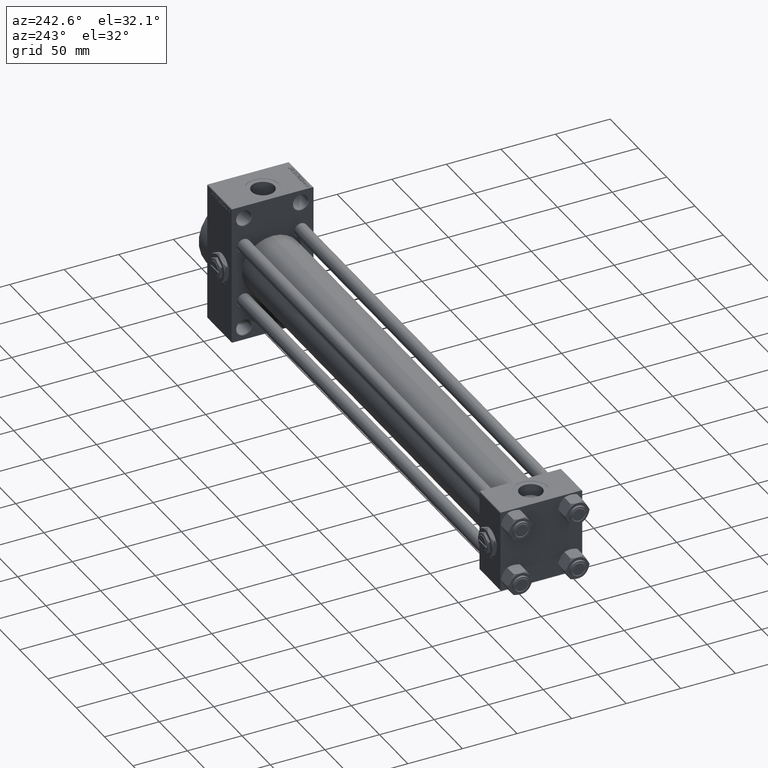
[diagram: clean part render]
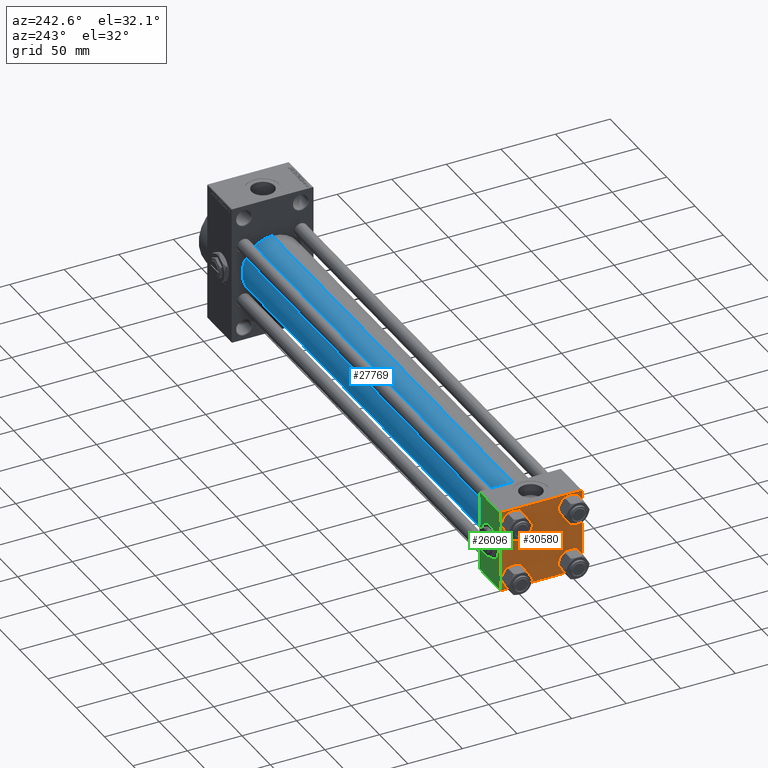
[diagram: same view with three faces highlighted in distinct colors, each labeled with its STEP entity id]
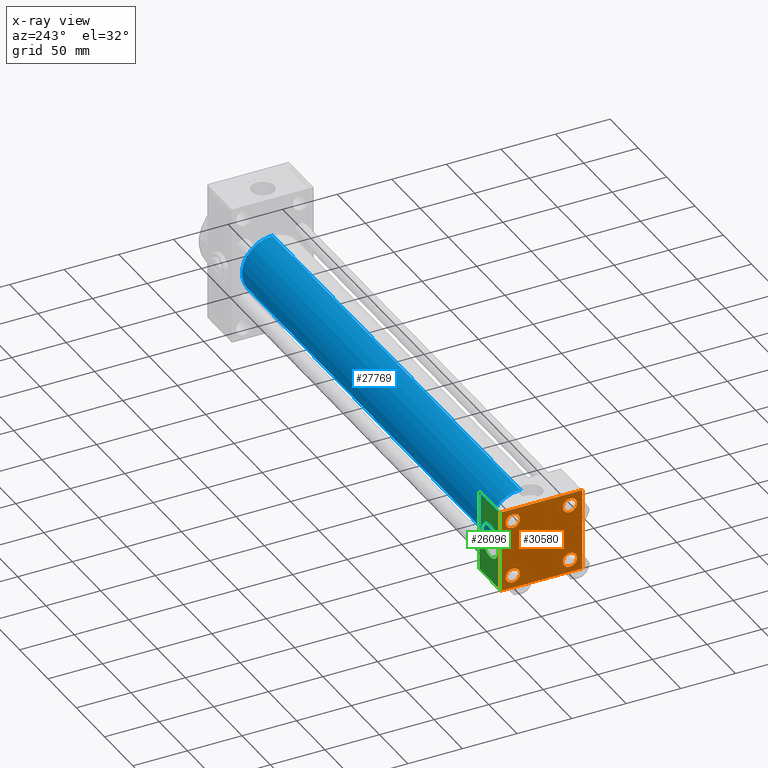
[diagram: x-ray of the same camera — body ghosted, the three highlighted faces saturated]
A machine part, auxiliary view with three faces highlighted in distinct colors.
The next image is the same camera in x-ray (body ghosted, the three faces saturated) — at least one of them is partly hidden behind the body in this view.
Their STEP definitions:

[orange] entity #30580 — the highlighted planar face has unit normal (-1, 0, 0).
#150 = CARTESIAN_POINT ( 'NONE',  ( 0.000000000000000000, 26.14999999999999858, 26.15000000000000213 ) ) ;
#344 = CARTESIAN_POINT ( 'NONE',  ( 0.000000000000000000, 26.14999999999999858, 26.15000000000000213 ) ) ;
#502 = VECTOR ( 'NONE', #7561, 1000.000000000000000 ) ;
#1248 = LINE ( 'NONE', #30566, #42402 ) ;
#1568 = DIRECTION ( 'NONE',  ( 1.000000000000000000, -0.000000000000000000, 0.000000000000000000 ) ) ;
#2137 = AXIS2_PLACEMENT_3D ( 'NONE', #29316, #14272, #11243 ) ;
#4448 = AXIS2_PLACEMENT_3D ( 'NONE', #8959, #43768, #24765 ) ;
#5166 = EDGE_CURVE ( 'NONE', #17148, #48189, #31656, .T. ) ;
#5606 = CARTESIAN_POINT ( 'NONE',  ( 0.000000000000000000, 26.14999999999999858, 32.65000000000002700 ) ) ;
#6447 = LINE ( 'NONE', #18213, #13741 ) ;
#6728 = FACE_BOUND ( 'NONE', #34244, .T. ) ;
#7218 = DIRECTION ( 'NONE',  ( -1.000000000000000000, 0.000000000000000000, -0.000000000000000000 ) ) ;
#7422 = EDGE_CURVE ( 'NONE', #48189, #17148, #33332, .T. ) ;
#7451 = VERTEX_POINT ( 'NONE', #10994 ) ;
#7561 = DIRECTION ( 'NONE',  ( 0.000000000000000000, -1.000000000000000000, -9.251858538542971581E-17 ) ) ;
#7709 = PLANE ( 'NONE',  #33599 ) ;
#7734 = DIRECTION ( 'NONE',  ( 0.000000000000000000, 0.000000000000000000, 1.000000000000000000 ) ) ;
#8185 = EDGE_CURVE ( 'NONE', #30026, #38930, #47740, .T. ) ;
#8694 = ORIENTED_EDGE ( 'NONE', *, *, #22542, .T. ) ;
#8959 = CARTESIAN_POINT ( 'NONE',  ( 0.000000000000000000, -26.14999999999999147, -26.15000000000000924 ) ) ;
#9024 = CARTESIAN_POINT ( 'NONE',  ( 0.000000000000000000, 26.14999999999999858, -32.65000000000001990 ) ) ;
#9433 = VERTEX_POINT ( 'NONE', #24601 ) ;
#10401 = LINE ( 'NONE', #24964, #20207 ) ;
#10431 = CIRCLE ( 'NONE', #44044, 6.500000000000015987 ) ;
#10994 = CARTESIAN_POINT ( 'NONE',  ( 0.000000000000000000, -37.00000000000000711, 37.49999999999999289 ) ) ;
#11243 = DIRECTION ( 'NONE',  ( 0.000000000000000000, 0.000000000000000000, 1.000000000000000000 ) ) ;
#11472 = FACE_OUTER_BOUND ( 'NONE', #41626, .T. ) ;
#11652 = CARTESIAN_POINT ( 'NONE',  ( 0.000000000000000000, -37.50000000000000000, -37.00000000000003553 ) ) ;
#11781 = VERTEX_POINT ( 'NONE', #11652 ) ;
#11860 = DIRECTION ( 'NONE',  ( 1.000000000000000000, -0.000000000000000000, 0.000000000000000000 ) ) ;
#12241 = CARTESIAN_POINT ( 'NONE',  ( 0.000000000000000000, 26.14999999999999858, -26.15000000000000213 ) ) ;
#12319 = LINE ( 'NONE', #27127, #26183 ) ;
#13265 = ORIENTED_EDGE ( 'NONE', *, *, #18556, .F. ) ;
#13466 = CIRCLE ( 'NONE', #25448, 6.500000000000023093 ) ;
#13741 = VECTOR ( 'NONE', #29251, 1000.000000000000000 ) ;
#14065 = EDGE_LOOP ( 'NONE', ( #24529, #37619 ) ) ;
#14272 = DIRECTION ( 'NONE',  ( 1.000000000000000000, -0.000000000000000000, 0.000000000000000000 ) ) ;
#14423 = CARTESIAN_POINT ( 'NONE',  ( 0.000000000000000000, 37.49999999999999289, 37.50000000000000000 ) ) ;
#14492 = FACE_BOUND ( 'NONE', #43330, .T. ) ;
#14749 = CARTESIAN_POINT ( 'NONE',  ( 0.000000000000000000, 0.000000000000000000, 0.000000000000000000 ) ) ;
#14866 = EDGE_CURVE ( 'NONE', #15024, #38698, #18287, .T. ) ;
#15024 = VERTEX_POINT ( 'NONE', #27642 ) ;
#15157 = ORIENTED_EDGE ( 'NONE', *, *, #38969, .T. ) ;
#15630 = DIRECTION ( 'NONE',  ( 0.000000000000000000, 0.000000000000000000, 1.000000000000000000 ) ) ;
#16030 = DIRECTION ( 'NONE',  ( 0.000000000000000000, 9.251858538542971581E-17, -1.000000000000000000 ) ) ;
#16268 = VECTOR ( 'NONE', #17522, 1000.000000000000114 ) ;
#16846 = DIRECTION ( 'NONE',  ( 0.000000000000000000, 0.000000000000000000, 1.000000000000000000 ) ) ;
#17148 = VERTEX_POINT ( 'NONE', #46003 ) ;
#17522 = DIRECTION ( 'NONE',  ( -0.000000000000000000, -0.7071067811865474617, -0.7071067811865474617 ) ) ;
#17593 = ORIENTED_EDGE ( 'NONE', *, *, #14866, .T. ) ;
#18213 = CARTESIAN_POINT ( 'NONE',  ( 0.000000000000000000, -37.24999999999975842, -37.25000000000027001 ) ) ;
#18282 = CIRCLE ( 'NONE', #23080, 6.500000000000015987 ) ;
#18287 = CIRCLE ( 'NONE', #24666, 6.500000000000023093 ) ;
#18556 = EDGE_CURVE ( 'NONE', #9433, #7451, #37616, .T. ) ;
#18794 = CARTESIAN_POINT ( 'NONE',  ( 0.000000000000000000, 37.49999999999999289, 37.00000000000000000 ) ) ;
#19262 = DIRECTION ( 'NONE',  ( 0.000000000000000000, 0.000000000000000000, 1.000000000000000000 ) ) ;
#19916 = EDGE_CURVE ( 'NONE', #46386, #35856, #38796, .T. ) ;
#20135 = DIRECTION ( 'NONE',  ( 0.000000000000000000, 0.000000000000000000, 1.000000000000000000 ) ) ;
#20207 = VECTOR ( 'NONE', #40945, 1000.000000000000114 ) ;
#20632 = CARTESIAN_POINT ( 'NONE',  ( 0.000000000000000000, -26.14999999999999147, 26.15000000000000924 ) ) ;
#20876 = EDGE_CURVE ( 'NONE', #25463, #7451, #12319, .T. ) ;
#21333 = VECTOR ( 'NONE', #24292, 1000.000000000000000 ) ;
#21579 = CIRCLE ( 'NONE', #32760, 6.500000000000023093 ) ;
#22542 = EDGE_CURVE ( 'NONE', #38698, #15024, #13466, .T. ) ;
#23080 = AXIS2_PLACEMENT_3D ( 'NONE', #12241, #41800, #7734 ) ;
#23206 = DIRECTION ( 'NONE',  ( 1.000000000000000000, -0.000000000000000000, 0.000000000000000000 ) ) ;
#23462 = ORIENTED_EDGE ( 'NONE', *, *, #7422, .T. ) ;
#23913 = EDGE_CURVE ( 'NONE', #48347, #26261, #18282, .T. ) ;
#24292 = DIRECTION ( 'NONE',  ( 0.000000000000000000, -1.000000000000000000, -9.251858538542972814E-17 ) ) ;
#24529 = ORIENTED_EDGE ( 'NONE', *, *, #31540, .T. ) ;
#24601 = CARTESIAN_POINT ( 'NONE',  ( 0.000000000000000000, 36.99999999999999289, 37.50000000000000000 ) ) ;
#24666 = AXIS2_PLACEMENT_3D ( 'NONE', #150, #23206, #38457 ) ;
#24765 = DIRECTION ( 'NONE',  ( 0.000000000000000000, 0.000000000000000000, 1.000000000000000000 ) ) ;
#24964 = CARTESIAN_POINT ( 'NONE',  ( 0.000000000000000000, 37.24999999999999289, 37.24999999999999289 ) ) ;
#24987 = ORIENTED_EDGE ( 'NONE', *, *, #34382, .T. ) ;
#25448 = AXIS2_PLACEMENT_3D ( 'NONE', #344, #11860, #15630 ) ;
#25463 = VERTEX_POINT ( 'NONE', #30636 ) ;
#25719 = EDGE_CURVE ( 'NONE', #38930, #30026, #21579, .T. ) ;
#26028 = FACE_BOUND ( 'NONE', #33808, .T. ) ;
#26183 = VECTOR ( 'NONE', #46866, 1000.000000000000114 ) ;
#26261 = VERTEX_POINT ( 'NONE', #26769 ) ;
#26769 = CARTESIAN_POINT ( 'NONE',  ( 0.000000000000000000, 26.14999999999999858, -19.64999999999998792 ) ) ;
#27127 = CARTESIAN_POINT ( 'NONE',  ( -0.000000000000000000, -37.25000000000000000, 37.25000000000000000 ) ) ;
#27642 = CARTESIAN_POINT ( 'NONE',  ( 0.000000000000000000, 26.14999999999999858, 19.64999999999998437 ) ) ;
#28067 = EDGE_CURVE ( 'NONE', #25463, #11781, #1248, .T. ) ;
#28546 = CARTESIAN_POINT ( 'NONE',  ( 0.000000000000000000, 37.24999999999998579, -37.24999999999998579 ) ) ;
#28673 = VERTEX_POINT ( 'NONE', #40477 ) ;
#28948 = CARTESIAN_POINT ( 'NONE',  ( 0.000000000000000000, 36.99999999999997868, -37.50000000000000000 ) ) ;
#29004 = ORIENTED_EDGE ( 'NONE', *, *, #5166, .T. ) ;
#29251 = DIRECTION ( 'NONE',  ( 0.000000000000000000, -0.7071067811865524577, 0.7071067811865426878 ) ) ;
#29316 = CARTESIAN_POINT ( 'NONE',  ( 0.000000000000000000, -26.14999999999999147, -26.15000000000000924 ) ) ;
#30026 = VERTEX_POINT ( 'NONE', #38517 ) ;
#30040 = DIRECTION ( 'NONE',  ( 1.000000000000000000, -0.000000000000000000, 0.000000000000000000 ) ) ;
#30566 = CARTESIAN_POINT ( 'NONE',  ( 0.000000000000000000, -37.50000000000000711, 37.49999999999999289 ) ) ;
#30580 = ADVANCED_FACE ( 'NONE', ( #6728, #14492, #45284, #26028, #11472 ), #7709, .T. ) ;
#30613 = CARTESIAN_POINT ( 'NONE',  ( 0.000000000000000000, 37.49999999999999289, 37.50000000000000000 ) ) ;
#30636 = CARTESIAN_POINT ( 'NONE',  ( 0.000000000000000000, -37.50000000000000711, 36.99999999999999289 ) ) ;
#31540 = EDGE_CURVE ( 'NONE', #26261, #48347, #10431, .T. ) ;
#31628 = ORIENTED_EDGE ( 'NONE', *, *, #36051, .T. ) ;
#31656 = CIRCLE ( 'NONE', #4448, 6.500000000000015987 ) ;
#32044 = CARTESIAN_POINT ( 'NONE',  ( 0.000000000000000000, -26.14999999999999147, 32.65000000000003411 ) ) ;
#32142 = DIRECTION ( 'NONE',  ( 1.000000000000000000, -0.000000000000000000, 0.000000000000000000 ) ) ;
#32760 = AXIS2_PLACEMENT_3D ( 'NONE', #35865, #1568, #16846 ) ;
#32771 = ORIENTED_EDGE ( 'NONE', *, *, #8185, .T. ) ;
#33332 = CIRCLE ( 'NONE', #2137, 6.500000000000015987 ) ;
#33529 = CARTESIAN_POINT ( 'NONE',  ( 0.000000000000000000, 26.14999999999999858, -26.15000000000000213 ) ) ;
#33599 = AXIS2_PLACEMENT_3D ( 'NONE', #14749, #7218, #44795 ) ;
#33808 = EDGE_LOOP ( 'NONE', ( #8694, #17593 ) ) ;
#34244 = EDGE_LOOP ( 'NONE', ( #43713, #32771 ) ) ;
#34304 = ORIENTED_EDGE ( 'NONE', *, *, #28067, .F. ) ;
#34382 = EDGE_CURVE ( 'NONE', #35856, #11781, #6447, .T. ) ;
#34579 = ORIENTED_EDGE ( 'NONE', *, *, #39513, .T. ) ;
#35856 = VERTEX_POINT ( 'NONE', #46912 ) ;
#35865 = CARTESIAN_POINT ( 'NONE',  ( 0.000000000000000000, -26.14999999999999147, 26.15000000000000924 ) ) ;
#36051 = EDGE_CURVE ( 'NONE', #9433, #43290, #10401, .T. ) ;
#37458 = ORIENTED_EDGE ( 'NONE', *, *, #20876, .T. ) ;
#37616 = LINE ( 'NONE', #30613, #502 ) ;
#37619 = ORIENTED_EDGE ( 'NONE', *, *, #23913, .T. ) ;
#38457 = DIRECTION ( 'NONE',  ( 0.000000000000000000, 0.000000000000000000, 1.000000000000000000 ) ) ;
#38517 = CARTESIAN_POINT ( 'NONE',  ( 0.000000000000000000, -26.14999999999999147, 19.64999999999999147 ) ) ;
#38698 = VERTEX_POINT ( 'NONE', #5606 ) ;
#38796 = LINE ( 'NONE', #43294, #21333 ) ;
#38930 = VERTEX_POINT ( 'NONE', #32044 ) ;
#38969 = EDGE_CURVE ( 'NONE', #28673, #46386, #48055, .T. ) ;
#39513 = EDGE_CURVE ( 'NONE', #43290, #28673, #48716, .T. ) ;
#40477 = CARTESIAN_POINT ( 'NONE',  ( 0.000000000000000000, 37.49999999999999289, -36.99999999999998579 ) ) ;
#40945 = DIRECTION ( 'NONE',  ( 0.000000000000000000, 0.7071067811865474617, -0.7071067811865474617 ) ) ;
#41365 = CARTESIAN_POINT ( 'NONE',  ( 0.000000000000000000, -26.14999999999999147, -32.65000000000002700 ) ) ;
#41626 = EDGE_LOOP ( 'NONE', ( #34579, #15157, #45525, #24987, #34304, #37458, #13265, #31628 ) ) ;
#41800 = DIRECTION ( 'NONE',  ( 1.000000000000000000, -0.000000000000000000, 0.000000000000000000 ) ) ;
#42402 = VECTOR ( 'NONE', #16030, 1000.000000000000000 ) ;
#43290 = VERTEX_POINT ( 'NONE', #18794 ) ;
#43294 = CARTESIAN_POINT ( 'NONE',  ( 0.000000000000000000, 37.49999999999999289, -37.50000000000000000 ) ) ;
#43330 = EDGE_LOOP ( 'NONE', ( #29004, #23462 ) ) ;
#43713 = ORIENTED_EDGE ( 'NONE', *, *, #25719, .T. ) ;
#43768 = DIRECTION ( 'NONE',  ( 1.000000000000000000, -0.000000000000000000, 0.000000000000000000 ) ) ;
#44044 = AXIS2_PLACEMENT_3D ( 'NONE', #33529, #30040, #19262 ) ;
#44795 = DIRECTION ( 'NONE',  ( -0.000000000000000000, 0.000000000000000000, 1.000000000000000000 ) ) ;
#44961 = DIRECTION ( 'NONE',  ( 0.000000000000000000, 0.000000000000000000, -1.000000000000000000 ) ) ;
#45069 = VECTOR ( 'NONE', #44961, 1000.000000000000000 ) ;
#45284 = FACE_BOUND ( 'NONE', #14065, .T. ) ;
#45525 = ORIENTED_EDGE ( 'NONE', *, *, #19916, .T. ) ;
#46003 = CARTESIAN_POINT ( 'NONE',  ( 0.000000000000000000, -26.14999999999999147, -19.64999999999999503 ) ) ;
#46386 = VERTEX_POINT ( 'NONE', #28948 ) ;
#46866 = DIRECTION ( 'NONE',  ( -0.000000000000000000, 0.7071067811865474617, 0.7071067811865474617 ) ) ;
#46912 = CARTESIAN_POINT ( 'NONE',  ( 0.000000000000000000, -37.00000000000002132, -37.50000000000000711 ) ) ;
#46946 = AXIS2_PLACEMENT_3D ( 'NONE', #20632, #32142, #20135 ) ;
#47740 = CIRCLE ( 'NONE', #46946, 6.500000000000023093 ) ;
#48055 = LINE ( 'NONE', #28546, #16268 ) ;
#48189 = VERTEX_POINT ( 'NONE', #41365 ) ;
#48347 = VERTEX_POINT ( 'NONE', #9024 ) ;
#48716 = LINE ( 'NONE', #14423, #45069 ) ;

[blue] entity #27769 — the highlighted cylindrical surface (edge-blend (fillet) strip) has radius 28 mm, axis along (-1, -0, -0).
#787 = AXIS2_PLACEMENT_3D ( 'NONE', #22530, #38766, #35256 ) ;
#1906 = ORIENTED_EDGE ( 'NONE', *, *, #13721, .F. ) ;
#3848 = ORIENTED_EDGE ( 'NONE', *, *, #8379, .T. ) ;
#4449 = DIRECTION ( 'NONE',  ( -1.000000000000000000, -0.000000000000000000, -0.000000000000000000 ) ) ;
#6950 = VERTEX_POINT ( 'NONE', #14098 ) ;
#7017 = VECTOR ( 'NONE', #4449, 1000.000000000000000 ) ;
#8379 = EDGE_CURVE ( 'NONE', #11094, #34646, #48875, .T. ) ;
#10164 = VECTOR ( 'NONE', #37122, 1000.000000000000000 ) ;
#11094 = VERTEX_POINT ( 'NONE', #22326 ) ;
#12924 = CARTESIAN_POINT ( 'NONE',  ( 36.99999999999997868, 8.269258236473784371E-16, -28.00000000000000000 ) ) ;
#13721 = EDGE_CURVE ( 'NONE', #6950, #15347, #31251, .T. ) ;
#14098 = CARTESIAN_POINT ( 'NONE',  ( 475.0000000000000000, -2.602085213965210642E-15, 28.00000000000000000 ) ) ;
#15347 = VERTEX_POINT ( 'NONE', #29249 ) ;
#17879 = CIRCLE ( 'NONE', #32246, 28.00000000000000000 ) ;
#18415 = AXIS2_PLACEMENT_3D ( 'NONE', #32834, #40596, #32593 ) ;
#22326 = CARTESIAN_POINT ( 'NONE',  ( 475.0000000000000000, 8.269258236473784371E-16, -28.00000000000000000 ) ) ;
#22404 = CIRCLE ( 'NONE', #787, 28.00000000000000000 ) ;
#22530 = CARTESIAN_POINT ( 'NONE',  ( 475.0000000000000000, -2.602085213965210642E-15, 0.000000000000000000 ) ) ;
#23854 = FACE_OUTER_BOUND ( 'NONE', #38186, .T. ) ;
#26074 = DIRECTION ( 'NONE',  ( 0.000000000000000000, 0.000000000000000000, 1.000000000000000000 ) ) ;
#27064 = DIRECTION ( 'NONE',  ( 1.000000000000000000, -0.000000000000000000, 0.000000000000000000 ) ) ;
#27257 = EDGE_CURVE ( 'NONE', #11094, #6950, #22404, .T. ) ;
#27769 = ADVANCED_FACE ( 'NONE', ( #23854 ), #39109, .T. ) ;
#29249 = CARTESIAN_POINT ( 'NONE',  ( 36.99999999999997868, -2.602085213965210642E-15, 28.00000000000000000 ) ) ;
#30568 = CARTESIAN_POINT ( 'NONE',  ( 36.99999999999997868, -2.602085213965210642E-15, 0.000000000000000000 ) ) ;
#31251 = LINE ( 'NONE', #38270, #7017 ) ;
#31277 = ORIENTED_EDGE ( 'NONE', *, *, #38779, .T. ) ;
#32246 = AXIS2_PLACEMENT_3D ( 'NONE', #30568, #27064, #26074 ) ;
#32593 = DIRECTION ( 'NONE',  ( 0.000000000000000000, 0.000000000000000000, 1.000000000000000000 ) ) ;
#32834 = CARTESIAN_POINT ( 'NONE',  ( 475.0000000000000000, -2.602085213965210642E-15, 0.000000000000000000 ) ) ;
#34646 = VERTEX_POINT ( 'NONE', #12924 ) ;
#35256 = DIRECTION ( 'NONE',  ( 0.000000000000000000, 0.000000000000000000, -1.000000000000000000 ) ) ;
#37122 = DIRECTION ( 'NONE',  ( -1.000000000000000000, -0.000000000000000000, -0.000000000000000000 ) ) ;
#38186 = EDGE_LOOP ( 'NONE', ( #48275, #3848, #31277, #1906 ) ) ;
#38270 = CARTESIAN_POINT ( 'NONE',  ( 475.0000000000000000, -2.602085213965210642E-15, 28.00000000000000000 ) ) ;
#38766 = DIRECTION ( 'NONE',  ( 1.000000000000000000, 0.000000000000000000, 0.000000000000000000 ) ) ;
#38779 = EDGE_CURVE ( 'NONE', #34646, #15347, #17879, .T. ) ;
#39109 = CYLINDRICAL_SURFACE ( 'NONE', #18415, 28.00000000000000000 ) ;
#40596 = DIRECTION ( 'NONE',  ( -1.000000000000000000, -0.000000000000000000, -0.000000000000000000 ) ) ;
#47901 = CARTESIAN_POINT ( 'NONE',  ( 475.0000000000000000, 8.269258236473784371E-16, -28.00000000000000000 ) ) ;
#48275 = ORIENTED_EDGE ( 'NONE', *, *, #27257, .F. ) ;
#48875 = LINE ( 'NONE', #47901, #10164 ) ;

[green] entity #26096 — the highlighted planar face has unit normal (0, 1, 0).
#23 = EDGE_LOOP ( 'NONE', ( #44179, #9344 ) ) ;
#309 = VERTEX_POINT ( 'NONE', #46520 ) ;
#3088 = VERTEX_POINT ( 'NONE', #49161 ) ;
#4177 = AXIS2_PLACEMENT_3D ( 'NONE', #30910, #49418, #7120 ) ;
#4259 = LINE ( 'NONE', #46572, #27972 ) ;
#6379 = DIRECTION ( 'NONE',  ( 0.000000000000000000, 1.000000000000000000, 0.000000000000000000 ) ) ;
#7120 = DIRECTION ( 'NONE',  ( 0.000000000000000000, 0.000000000000000000, 1.000000000000000000 ) ) ;
#7357 = CARTESIAN_POINT ( 'NONE',  ( 18.50000000000000000, 37.49999999999999289, 0.000000000000000000 ) ) ;
#8970 = CIRCLE ( 'NONE', #4177, 15.00000000000000178 ) ;
#9075 = CARTESIAN_POINT ( 'NONE',  ( 37.00000000000000000, 37.49999999999999289, 37.00000000000000000 ) ) ;
#9344 = ORIENTED_EDGE ( 'NONE', *, *, #46449, .F. ) ;
#9601 = CARTESIAN_POINT ( 'NONE',  ( 37.00000000000000000, 37.49999999999999289, -36.99999999999998579 ) ) ;
#11226 = FACE_BOUND ( 'NONE', #23, .T. ) ;
#11968 = ORIENTED_EDGE ( 'NONE', *, *, #39513, .F. ) ;
#12739 = AXIS2_PLACEMENT_3D ( 'NONE', #45040, #40551, #21782 ) ;
#14423 = CARTESIAN_POINT ( 'NONE',  ( 0.000000000000000000, 37.49999999999999289, 37.50000000000000000 ) ) ;
#14779 = CARTESIAN_POINT ( 'NONE',  ( 37.00000000000000000, 37.49999999999999289, 37.00000000000000000 ) ) ;
#16602 = CIRCLE ( 'NONE', #29407, 15.00000000000000178 ) ;
#18506 = FACE_OUTER_BOUND ( 'NONE', #42014, .T. ) ;
#18794 = CARTESIAN_POINT ( 'NONE',  ( 0.000000000000000000, 37.49999999999999289, 37.00000000000000000 ) ) ;
#18975 = ORIENTED_EDGE ( 'NONE', *, *, #31999, .T. ) ;
#19558 = DIRECTION ( 'NONE',  ( -1.000000000000000000, 0.000000000000000000, 0.000000000000000000 ) ) ;
#19614 = VERTEX_POINT ( 'NONE', #9601 ) ;
#20372 = LINE ( 'NONE', #9075, #47289 ) ;
#21782 = DIRECTION ( 'NONE',  ( 0.000000000000000000, -0.000000000000000000, 1.000000000000000000 ) ) ;
#22360 = EDGE_CURVE ( 'NONE', #3088, #309, #16602, .T. ) ;
#24383 = DIRECTION ( 'NONE',  ( 1.000000000000000000, 0.000000000000000000, 0.000000000000000000 ) ) ;
#26096 = ADVANCED_FACE ( 'NONE', ( #11226, #18506 ), #33521, .T. ) ;
#26465 = CARTESIAN_POINT ( 'NONE',  ( 37.00000000000000000, 37.49999999999999289, 37.50000000000000000 ) ) ;
#27972 = VECTOR ( 'NONE', #19558, 1000.000000000000000 ) ;
#28673 = VERTEX_POINT ( 'NONE', #40477 ) ;
#29407 = AXIS2_PLACEMENT_3D ( 'NONE', #7357, #6379, #37909 ) ;
#30366 = EDGE_CURVE ( 'NONE', #19614, #28673, #4259, .T. ) ;
#30910 = CARTESIAN_POINT ( 'NONE',  ( 18.50000000000000000, 37.49999999999999289, 0.000000000000000000 ) ) ;
#31999 = EDGE_CURVE ( 'NONE', #41267, #19614, #37712, .T. ) ;
#33521 = PLANE ( 'NONE',  #12739 ) ;
#33765 = EDGE_CURVE ( 'NONE', #43290, #41267, #20372, .T. ) ;
#37712 = LINE ( 'NONE', #26465, #40048 ) ;
#37909 = DIRECTION ( 'NONE',  ( 0.000000000000000000, 0.000000000000000000, 1.000000000000000000 ) ) ;
#37966 = DIRECTION ( 'NONE',  ( 0.000000000000000000, 0.000000000000000000, -1.000000000000000000 ) ) ;
#39513 = EDGE_CURVE ( 'NONE', #43290, #28673, #48716, .T. ) ;
#40048 = VECTOR ( 'NONE', #37966, 1000.000000000000000 ) ;
#40477 = CARTESIAN_POINT ( 'NONE',  ( 0.000000000000000000, 37.49999999999999289, -36.99999999999998579 ) ) ;
#40551 = DIRECTION ( 'NONE',  ( -0.000000000000000000, 1.000000000000000000, 0.000000000000000000 ) ) ;
#41267 = VERTEX_POINT ( 'NONE', #14779 ) ;
#41623 = ORIENTED_EDGE ( 'NONE', *, *, #33765, .T. ) ;
#42014 = EDGE_LOOP ( 'NONE', ( #18975, #48908, #11968, #41623 ) ) ;
#43290 = VERTEX_POINT ( 'NONE', #18794 ) ;
#44179 = ORIENTED_EDGE ( 'NONE', *, *, #22360, .F. ) ;
#44961 = DIRECTION ( 'NONE',  ( 0.000000000000000000, 0.000000000000000000, -1.000000000000000000 ) ) ;
#45040 = CARTESIAN_POINT ( 'NONE',  ( 37.00000000000000000, 37.49999999999999289, 37.50000000000000000 ) ) ;
#45069 = VECTOR ( 'NONE', #44961, 1000.000000000000000 ) ;
#46449 = EDGE_CURVE ( 'NONE', #309, #3088, #8970, .T. ) ;
#46520 = CARTESIAN_POINT ( 'NONE',  ( 18.50000000000000355, 37.49999999999999289, -15.00000000000000178 ) ) ;
#46572 = CARTESIAN_POINT ( 'NONE',  ( 37.00000000000000000, 37.49999999999999289, -36.99999999999998579 ) ) ;
#47289 = VECTOR ( 'NONE', #24383, 1000.000000000000000 ) ;
#48716 = LINE ( 'NONE', #14423, #45069 ) ;
#48908 = ORIENTED_EDGE ( 'NONE', *, *, #30366, .T. ) ;
#49161 = CARTESIAN_POINT ( 'NONE',  ( 18.50000000000000000, 37.49999999999999289, 15.00000000000000178 ) ) ;
#49418 = DIRECTION ( 'NONE',  ( 0.000000000000000000, 1.000000000000000000, 0.000000000000000000 ) ) ;